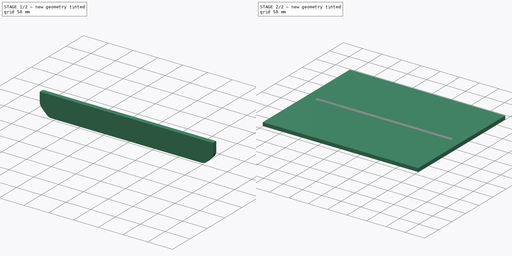
[diagram: build sequence overview — one tinted view per stage of 2, left to right]
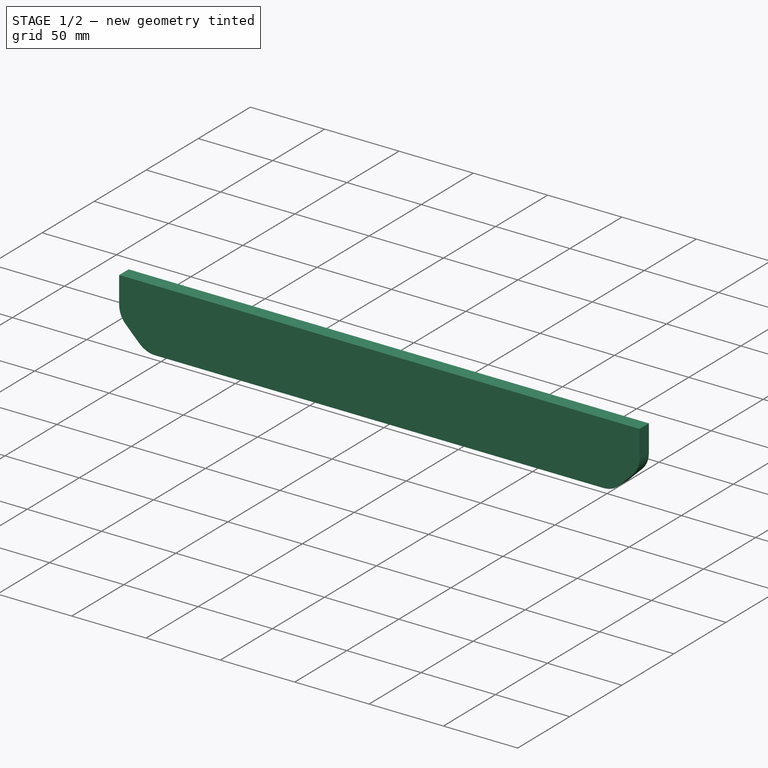
[diagram: stage 1 of 2 — iso view after this stage's code; geometry added in this stage tinted green]
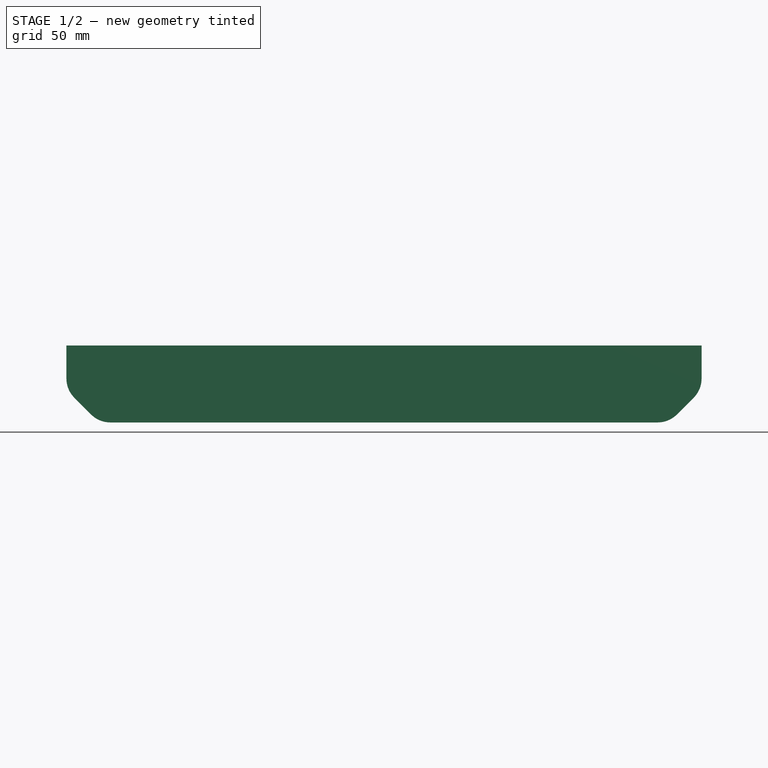
[diagram: stage 1 of 2 — front view after this stage's code; geometry added in this stage tinted green]
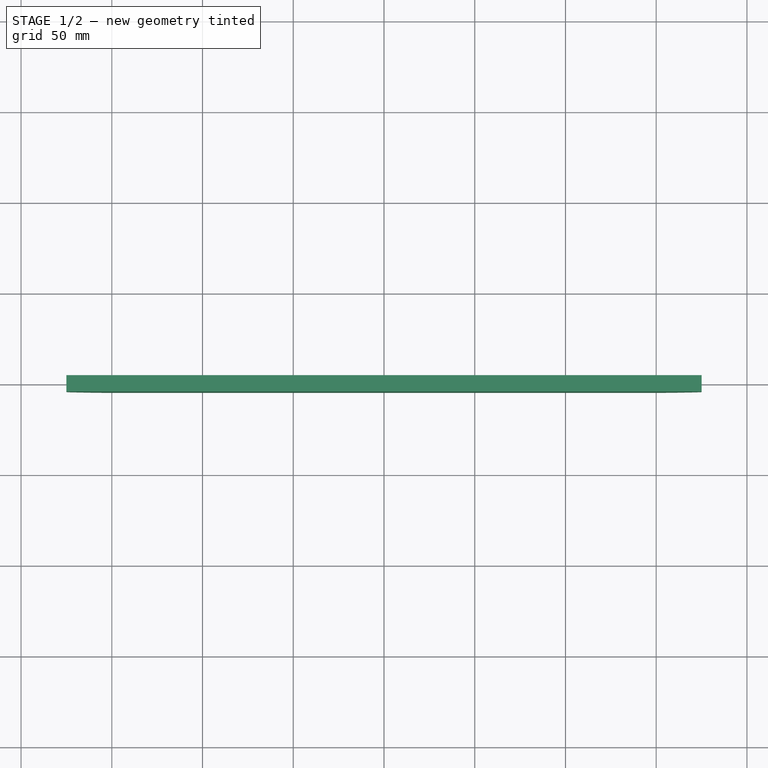
[diagram: stage 1 of 2 — top view after this stage's code; geometry added in this stage tinted green]
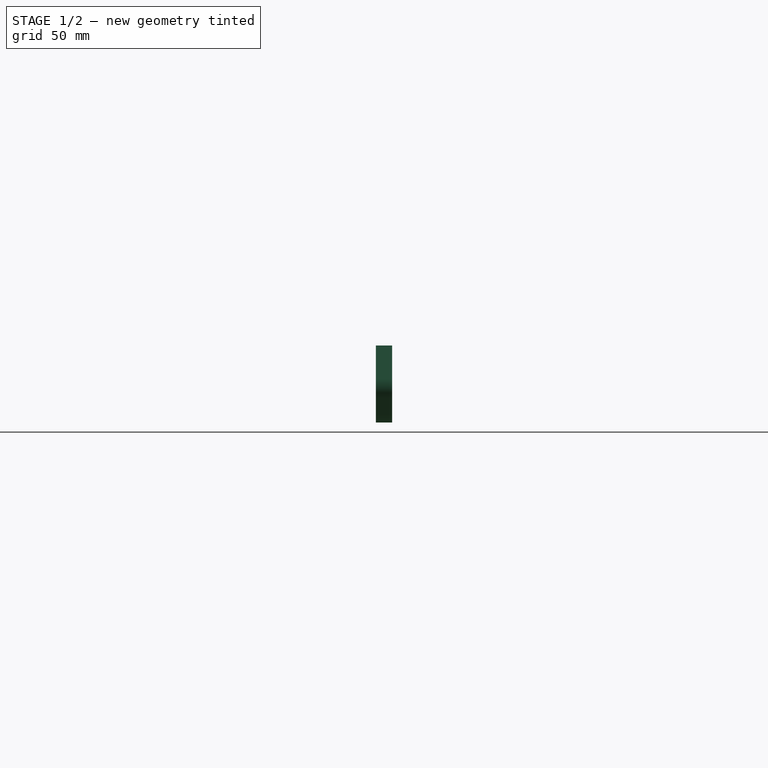
[diagram: stage 1 of 2 — right view after this stage's code; geometry added in this stage tinted green]
FCSTD DOCUMENT  (FreeCAD 0.19R)
Label: Base_Assembly
License: Creative Commons Attribution-ShareAlike
LicenseURL: http://creativecommons.org/licenses/by-sa/4.0/
objects: PartDesign::CoordinateSystem×3, App::Link×3, App::DocumentObjectGroup×2, Sketcher::SketchObject×2, PartDesign::Pad×2, PartDesign::Body×2, App::FeaturePython×1, App::Part×1
note: 11 computed .brp shape members not serialized (recipe doc carries the construction recipe); baked Part::Feature solids carry a one-line shape summary decoded from their .brp
EXTERNAL_REF file=../key_dimensions.FCStd obj=Spreadsheet

FEATURE [PartDesign::Body] Base_bottom
  Group = -> [LCS_0001,Sketch001,Pad001]
  Origin = -> Origin002
  Tip = -> Pad001
FEATURE [App::Link] Base_bottom001
  AssemblyType = Asm4EE
  AttachedBy = #LCS_0001
  AttachedTo = Base_top001#LCS_0
  AttachmentOffset = pos=(0,0,-9) rot=(0,0,1;0rad)
  LinkPlacement = pos=(0,0,-9) rot=(0,0,1;0rad)
  LinkedObject = -> Base_bottom
  Placement = pos=(0,0,-9) rot=(0,0,1;0rad)
  expr: .AttachmentOffset.Base.z = -<<key_dimensions>>#<<Dimensions>>.MDF_thick
FEATURE [PartDesign::CoordinateSystem] LCS_0002
  AttacherType = Attacher::AttachEngine3D
  MapMode = 2
  Support = -> [X_Axis003]
FEATURE [Sketcher::SketchObject] Sketch002
  FullyConstrained = false
  MapMode = 5
  Placement = pos=(0,0,0) rot=(1,0,0;1.5708rad)
  Support = -> [XZ_Plane003]
  sketch-geometry (10):
    g0: LineSegment StartX=-175 StartY=0 StartZ=0 EndX=175 EndY=0 EndZ=0
    g1: LineSegment StartX=175 StartY=0 StartZ=0 EndX=175 EndY=-18.1806 EndZ=0
    g2: LineSegment StartX=170.607 StartY=-28.7872 StartZ=0 EndX=161.414 EndY=-37.9795 EndZ=0
    g3: LineSegment StartX=150.808 StartY=-42.3729 StartZ=0 EndX=-150.808 EndY=-42.3729 EndZ=0
    g4: LineSegment StartX=-161.414 StartY=-37.9795 StartZ=0 EndX=-170.607 EndY=-28.7872 EndZ=0
    g5: LineSegment StartX=-175 StartY=-18.1806 StartZ=0 EndX=-175 EndY=0 EndZ=0
    g6: ArcOfCircle CenterX=-160 CenterY=-18.1806 CenterZ=0 NormalX=0 NormalY=0 NormalZ=1 AngleXU=0 Radius=15 StartAngle=3.14159 EndAngle=3.92699
    g7: ArcOfCircle CenterX=-150.808 CenterY=-27.3729 CenterZ=0 NormalX=0 NormalY=0 NormalZ=1 AngleXU=0 Radius=15 StartAngle=3.92699 EndAngle=4.71239
    g8: ArcOfCircle CenterX=150.808 CenterY=-27.3729 CenterZ=0 NormalX=0 NormalY=0 NormalZ=1 AngleXU=0 Radius=15 StartAngle=4.71239 EndAngle=5.49779
    g9: ArcOfCircle CenterX=160 CenterY=-18.1806 CenterZ=0 NormalX=0 NormalY=0 NormalZ=1 AngleXU=0 Radius=15 StartAngle=5.49779 EndAngle=6.28319
  constraints (24):
    c: Horizontal(g0)
    c: Coincident(g0,g1)
    c: Vertical(g1)
    c: Horizontal(g3)
    c: Vertical(g5)
    c: Coincident(g5,g0)
    c: Equal(g2,g4)
    c: Perpendicular(g4,g2)
    c: Angle(g2) = -2.35619
    c: Symmetric(g0,g0,g-1)
    c: DistanceX(g0,g0) = 350
    c: Tangent(g5,g6) = 1.5708
    c: Tangent(g4,g6) = 1.5708
    c: Tangent(g4,g7) = 1.5708
    c: Tangent(g3,g7) = 1.5708
    c: Equal(g6,g7)
    c: Tangent(g3,g8) = 1.5708
    c: Tangent(g2,g8) = 1.5708
    c: Tangent(g2,g9) = 1.5708
    c: Tangent(g1,g9) = 1.5708
    c: Equal(g9,g8)
    c: Radius(g8) = 15
    c: Equal(g7,g8)
    c: Distance(g2) = 13
FEATURE [PartDesign::Pad] Pad002
  Direction = (1,1,1)
  Length = 9
  Length2 = 100
  Midplane = true
  Placement = pos=(0,0,0) rot=(1,0,0;1.5708rad)
  Profile = -> Sketch002
  Type = 0
  expr: Length = <<key_dimensions>>#<<Dimensions>>.MDF_thick
FEATURE [PartDesign::Body] Slider_Fixing
  Group = -> [LCS_0002,Sketch002,Pad002]
  Origin = -> Origin003
  Tip = -> Pad002
FEATURE [App::DocumentObjectGroup] Parts
  Group = -> [Base_bottom,Slider_Fixing]
FEATURE [App::Link] Slider_Fixing001
  AssemblyType = Asm4EE
  AttachedBy = #LCS_0002
  AttachedTo = Parent Assembly#LCS_Origin
  AttachmentOffset = pos=(0,108,-18) rot=(0,0,1;0rad)
  LinkPlacement = pos=(0,108,-18) rot=(0,0,1;0rad)
  LinkedObject = -> Slider_Fixing
  Placement = pos=(0,108,-18) rot=(0,0,1;0rad)
FEATURE [App::Link] Slider_Fixing002
  AssemblyType = Asm4EE
  AttachedBy = #LCS_0002
  AttachedTo = Parent Assembly#LCS_Origin
  AttachmentOffset = pos=(0,-108,-18) rot=(0,0,1;0rad)
  LinkPlacement = pos=(0,-108,-18) rot=(0,0,1;0rad)
  LinkedObject = -> Slider_Fixing
  Placement = pos=(0,-108,-18) rot=(0,0,1;0rad)
FEATURE [App::Part] Model
  Configuration = 0
  Group = -> [LCS_Origin,Constraints,Variables,Base_bottom001,Slider_Fixing001,Slider_Fixing002]
  Origin = -> Origin
  Type = Assembly4 Model

RESOLVED EXTERNAL PARTS (link-assembly join: the EXTERNAL_REF files above that resolve inside this repo's crawl, each included once):
---- part ../key_dimensions.FCStd = doc fcstd_41c4ab9f2bd9 ----
FCSTD DOCUMENT  (FreeCAD 0.19R)
Label: key_dimensions
License: Creative Commons Attribution-ShareAlike
LicenseURL: http://creativecommons.org/licenses/by-sa/4.0/
objects: Spreadsheet::Sheet×1

FEATURE [Spreadsheet::Sheet] Spreadsheet  label="Dimensions"
  cells = A1=MDF thickness; A2(MDF_thick)=9; B2=MDF thick; A3(MDF_thin)=5.5; B3=MDF thin; A4=Main Frame; A5(frame_depth)=176; B5=Frame depth; A6(frame_width)=100; B6=Frame width; A7(window_width)=690; B7=Window width; A8(center_height)=299.25; B8=Center height (base to center); A9(cradle_base)=235; B9=Cradle base (base to cradle base); A10(slider_axis_height)=190; B10=slider axis height (base to horizontal sliders axis); A11(top_height)=1150; B11=Top height (top height, without curve top); A12(rear_overhang)=400; B12=Rear overhang (from the center); A13=Acrylic; A14(acrylic_width)=330; B14=width; A15(acrylic_depth)=469; B15=depth; A16=Cradle; A17(cradle_tilting)=40; B17=cradle tilting; A18(cradle_rounded)=15; B18=cradle rounded; A19(base_cradle_width)=400; B19=Base Cradle width; A20(base_cradle_depth)=320; B20=Base Cradle depth; A21=Base Rails; A22(rail_A)=38.5; B22=Rail A; A23(rail_B)=65.5; B23=Rail B; A24(rail_C)=115.5; B24=Rail C; A25(rail_D)=140.5; B25=Rail D; A26(wing_depth)=320; B26=Wing depth; A27(wing_length)=215; B27=Wing length
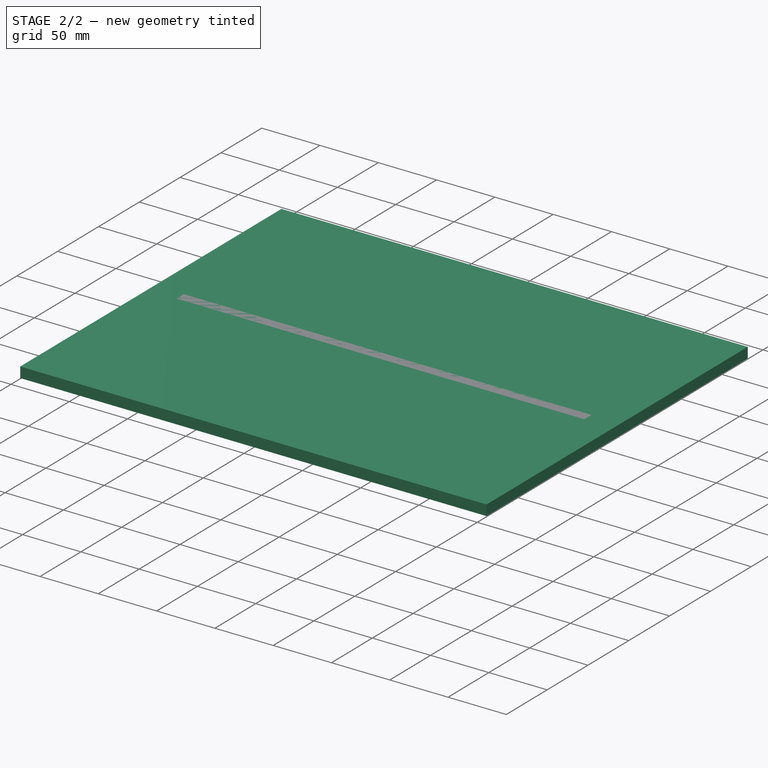
[diagram: stage 2 of 2 — iso view after this stage's code; geometry added in this stage tinted green]
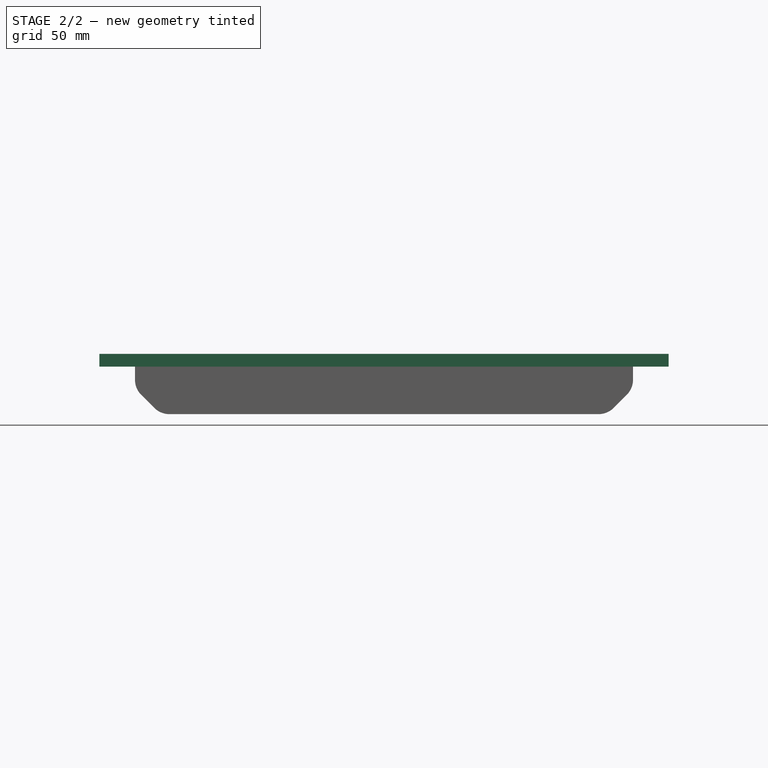
[diagram: stage 2 of 2 — front view after this stage's code; geometry added in this stage tinted green]
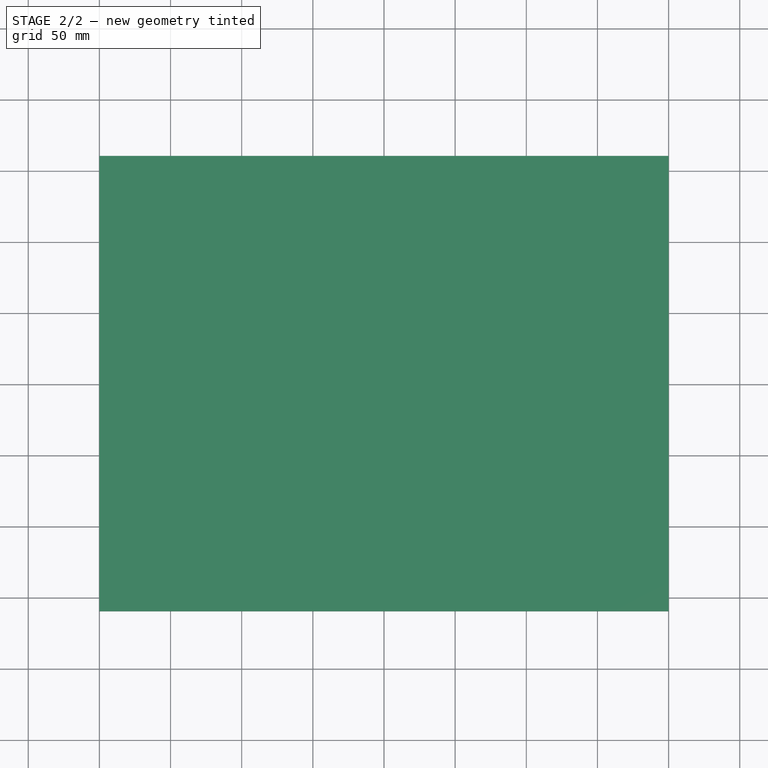
[diagram: stage 2 of 2 — top view after this stage's code; geometry added in this stage tinted green]
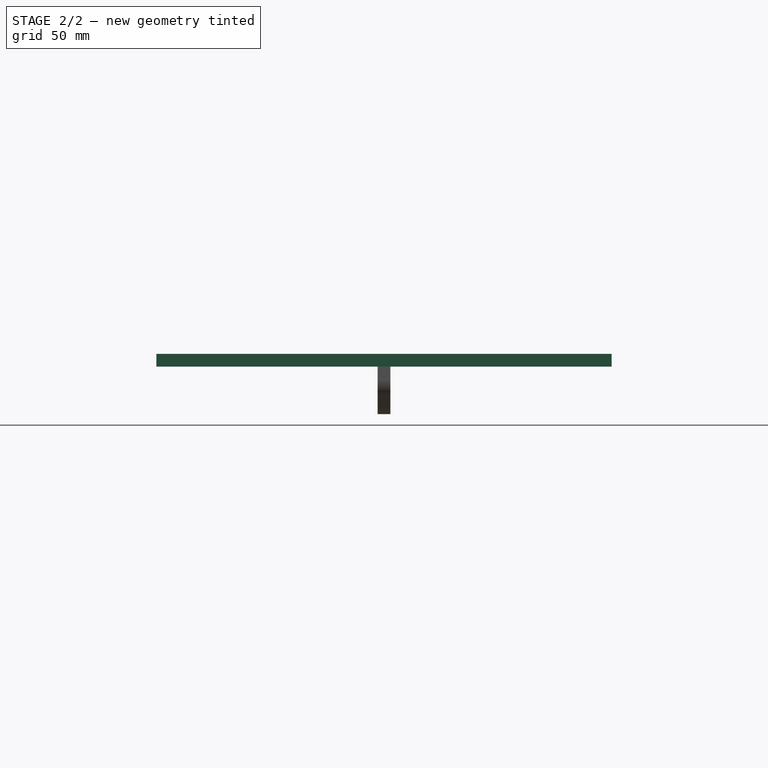
[diagram: stage 2 of 2 — right view after this stage's code; geometry added in this stage tinted green]
FEATURE [PartDesign::CoordinateSystem] LCS_Origin
  AttacherType = Attacher::AttachEngine3D
  MapMode = 2
  Support = -> [X_Axis]
FEATURE [App::DocumentObjectGroup] Constraints
FEATURE [App::FeaturePython] Variables  # WARN: FeaturePython — macro-defined, semantics opaque (R4)
FEATURE [PartDesign::CoordinateSystem] LCS_0001
  AttacherType = Attacher::AttachEngine3D
  MapMode = 2
  Support = -> [X_Axis002]
FEATURE [Sketcher::SketchObject] Sketch001
  FullyConstrained = true
  MapMode = 5
  Support = -> [XY_Plane002]
  expr: Constraints[10] = <<key_dimensions>>#<<Dimensions>>.base_cradle_width
  expr: Constraints[9] = <<key_dimensions>>#<<Dimensions>>.base_cradle_depth
  sketch-geometry (4):
    g0: LineSegment StartX=-200 StartY=160 StartZ=0 EndX=200 EndY=160 EndZ=0
    g1: LineSegment StartX=200 StartY=160 StartZ=0 EndX=200 EndY=-160 EndZ=0
    g2: LineSegment StartX=200 StartY=-160 StartZ=0 EndX=-200 EndY=-160 EndZ=0
    g3: LineSegment StartX=-200 StartY=-160 StartZ=0 EndX=-200 EndY=160 EndZ=0
  constraints (11):
    c: Coincident(g0,g1)
    c: Coincident(g1,g2)
    c: Coincident(g2,g3)
    c: Coincident(g3,g0)
    c: Horizontal(g0)
    c: Horizontal(g2)
    c: Vertical(g1)
    c: Vertical(g3)
    c: Symmetric(g1,g0,g-1)
    c: DistanceY(g3,g3) = 320
    c: DistanceX(g2,g2) = 400
FEATURE [PartDesign::Pad] Pad001
  Direction = (1,1,1)
  Length = 9
  Length2 = 100
  Profile = -> Sketch001
  Reversed = true
  Type = 0
  expr: Length = <<key_dimensions>>#<<Dimensions>>.MDF_thick
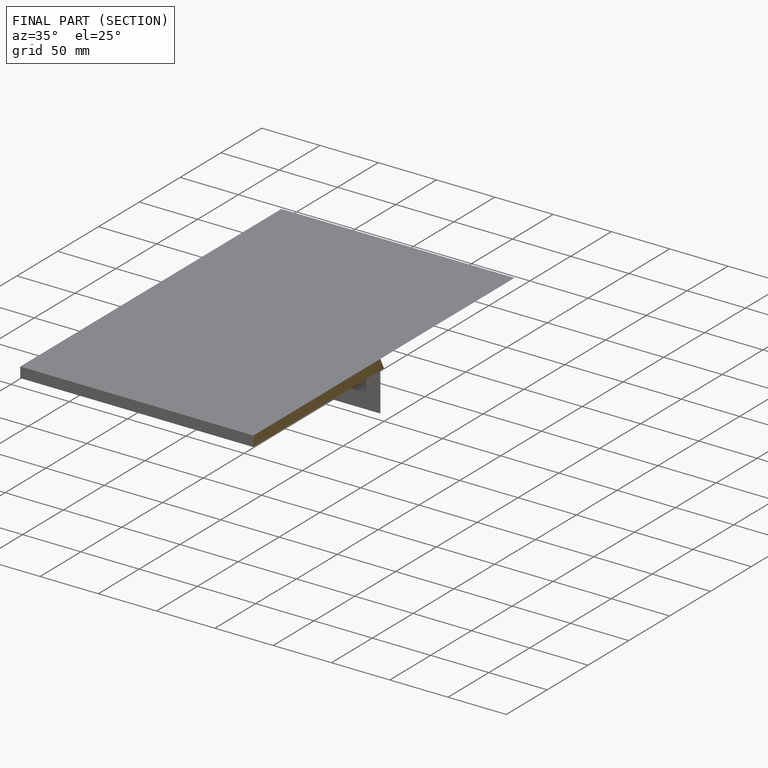
[diagram: finished part — half-section view (interior)]
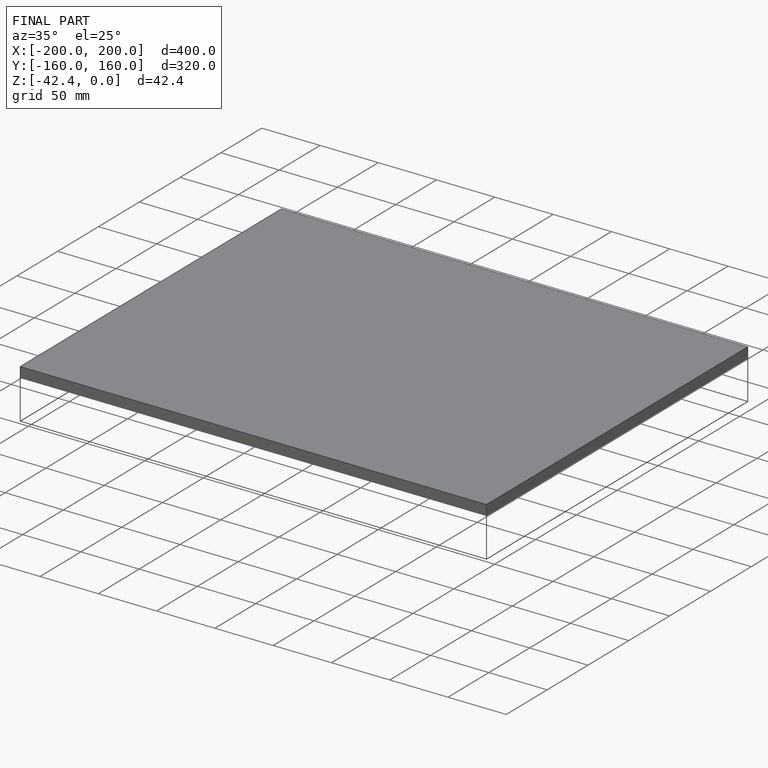
[diagram: finished part — iso view with bounding-box wireframe]
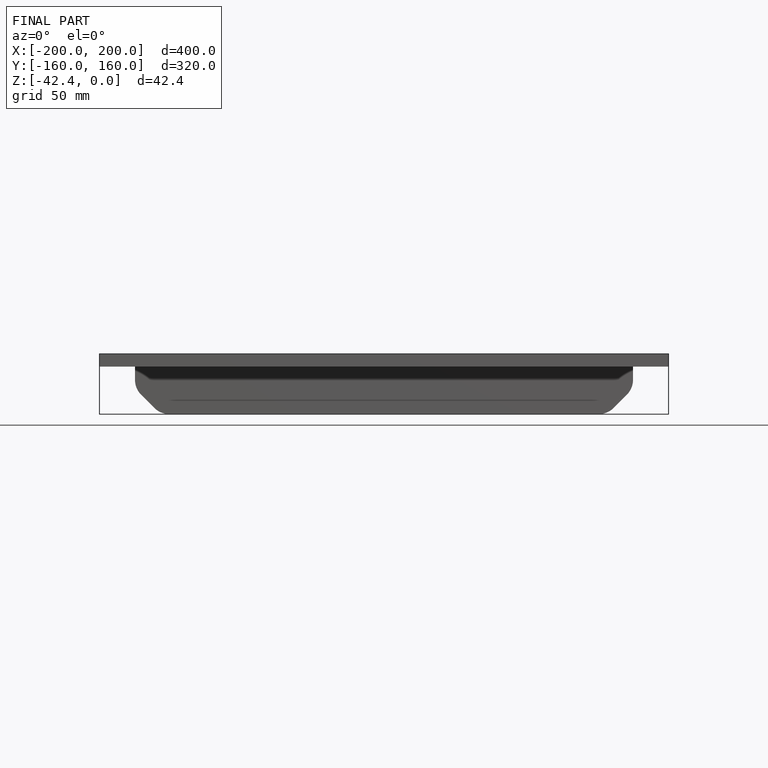
[diagram: finished part — front view with bounding-box wireframe]
